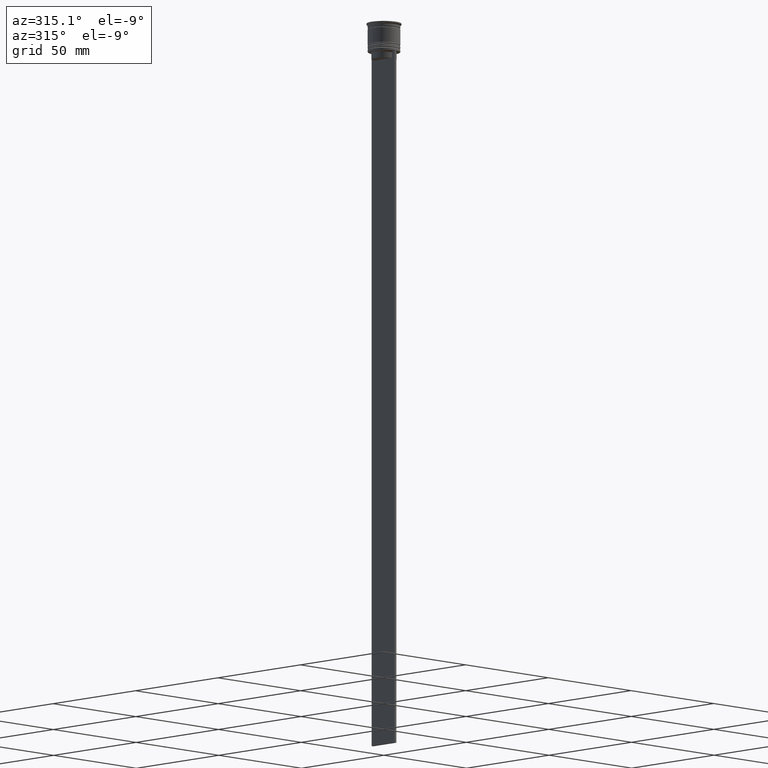
[diagram: clean part render]
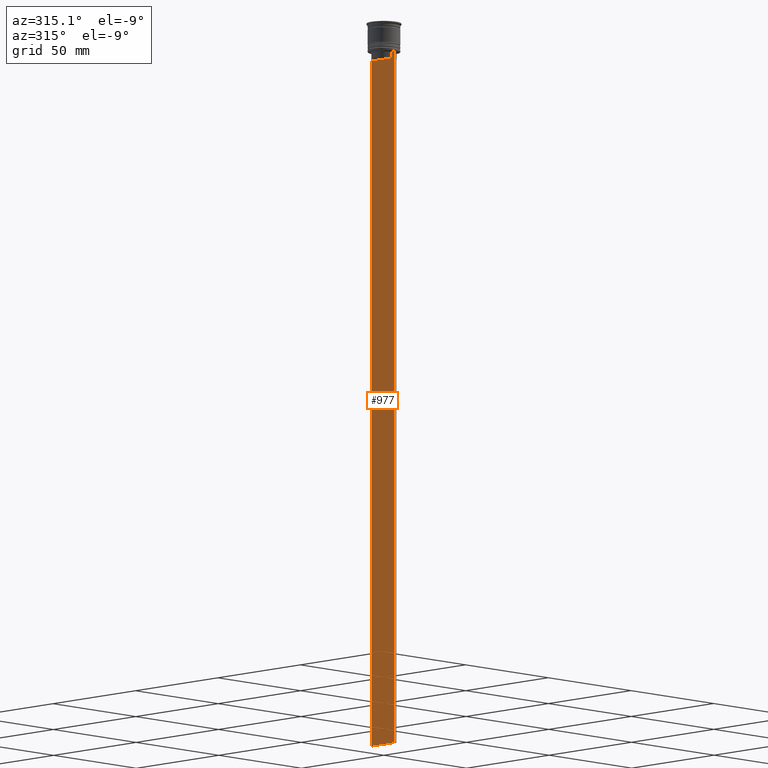
[diagram: same view with one face highlighted and labeled with its STEP entity id]
A machine part, auxiliary view. The second image highlights one B-rep face of the part: STEP entity #977.
In plain terms, the highlighted planar face has unit normal (-1, 0, 0).
Its self-contained STEP definition (entity closure, byte-faithful):
#1 = EDGE_CURVE ( 'NONE', #782, #1154, #1803, .T. ) ;
#40 = LINE ( 'NONE', #1597, #1086 ) ;
#108 = CARTESIAN_POINT ( 'NONE',  ( -0.5000000000000000000, -5.878775382679629402, -12.50000000000000000 ) ) ;
#166 = LINE ( 'NONE', #1702, #167 ) ;
#167 = VECTOR ( 'NONE', #1726, 1000.000000000000000 ) ;
#205 = DIRECTION ( 'NONE',  ( -1.000000000000000000, 0.000000000000000000, 0.000000000000000000 ) ) ;
#206 = VECTOR ( 'NONE', #1778, 1000.000000000000000 ) ;
#222 = VERTEX_POINT ( 'NONE', #395 ) ;
#242 = B_SPLINE_CURVE_WITH_KNOTS ( 'NONE', 3,
 ( #508, #2437, #903, #108 ),
 .UNSPECIFIED., .F., .F.,
 ( 4, 4 ),
 ( 0.02539176325380714666, 0.02610162431828674801 ),
 .UNSPECIFIED. ) ;
#318 = VERTEX_POINT ( 'NONE', #1357 ) ;
#338 = EDGE_CURVE ( 'NONE', #2162, #2461, #1737, .T. ) ;
#345 = EDGE_LOOP ( 'NONE', ( #1749, #458, #2341, #844, #2390, #1905, #876, #2465, #2406, #1167, #2185, #1034 ) ) ;
#395 = CARTESIAN_POINT ( 'NONE',  ( -0.5000000000000000000, 7.000000000000002665, -312.5000000000000000 ) ) ;
#418 = CARTESIAN_POINT ( 'NONE',  ( -0.5000000000000000000, 5.376802023508029826, -13.00000000000000178 ) ) ;
#458 = ORIENTED_EDGE ( 'NONE', *, *, #1, .F. ) ;
#482 = EDGE_CURVE ( 'NONE', #1154, #2350, #2206, .T. ) ;
#508 = CARTESIAN_POINT ( 'NONE',  ( -0.5000000000000000000, -5.376802023508029826, -13.00000000000000178 ) ) ;
#609 = CARTESIAN_POINT ( 'NONE',  ( -0.5000000000000000000, -5.376802023508029826, -13.00000000000000178 ) ) ;
#682 = VERTEX_POINT ( 'NONE', #1380 ) ;
#703 = CARTESIAN_POINT ( 'NONE',  ( -0.5000000000000000000, 5.711478846560141598, -12.66669470477064685 ) ) ;
#777 = EDGE_CURVE ( 'NONE', #682, #318, #879, .T. ) ;
#782 = VERTEX_POINT ( 'NONE', #1232 ) ;
#808 = DIRECTION ( 'NONE',  ( 0.000000000000000000, -1.000000000000000000, 0.000000000000000000 ) ) ;
#823 = CARTESIAN_POINT ( 'NONE',  ( -0.5000000000000000000, -6.999999999999997335, -12.50000000000000000 ) ) ;
#844 = ORIENTED_EDGE ( 'NONE', *, *, #2040, .T. ) ;
#867 = LINE ( 'NONE', #2030, #1613 ) ;
#876 = ORIENTED_EDGE ( 'NONE', *, *, #1084, .F. ) ;
#879 = LINE ( 'NONE', #1421, #1757 ) ;
#885 = CARTESIAN_POINT ( 'NONE',  ( -0.5000000000000000000, -6.999999999999997335, -12.50000000000000000 ) ) ;
#903 = CARTESIAN_POINT ( 'NONE',  ( -0.5000000000000000000, -5.711478856069293286, -12.66669469529570335 ) ) ;
#968 = CARTESIAN_POINT ( 'NONE',  ( -0.5000000000000000000, -6.881860213634102053, -12.50000000000000000 ) ) ;
#977 = ADVANCED_FACE ( 'NONE', ( #1532 ), #2080, .T. ) ;
#1008 = VECTOR ( 'NONE', #1065, 1000.000000000000000 ) ;
#1019 = VERTEX_POINT ( 'NONE', #1553 ) ;
#1020 = DIRECTION ( 'NONE',  ( -0.000000000000000000, -0.000000000000000000, 1.000000000000000000 ) ) ;
#1022 = EDGE_CURVE ( 'NONE', #1808, #782, #1568, .T. ) ;
#1024 = CARTESIAN_POINT ( 'NONE',  ( -0.5000000000000000000, -6.999999999999997335, -12.50000000000000000 ) ) ;
#1034 = ORIENTED_EDGE ( 'NONE', *, *, #1345, .F. ) ;
#1064 = DIRECTION ( 'NONE',  ( 0.000000000000000000, -1.000000000000000000, 0.000000000000000000 ) ) ;
#1065 = DIRECTION ( 'NONE',  ( 0.000000000000000000, 1.000000000000000000, 0.000000000000000000 ) ) ;
#1073 = CARTESIAN_POINT ( 'NONE',  ( -0.5000000000000000000, 5.878775382679629402, -12.50000000000000000 ) ) ;
#1084 = EDGE_CURVE ( 'NONE', #1322, #682, #2322, .T. ) ;
#1086 = VECTOR ( 'NONE', #808, 1000.000000000000000 ) ;
#1097 = LINE ( 'NONE', #1426, #1008 ) ;
#1105 = LINE ( 'NONE', #2452, #2328 ) ;
#1109 = EDGE_CURVE ( 'NONE', #1019, #2162, #40, .T. ) ;
#1125 = CARTESIAN_POINT ( 'NONE',  ( -0.5000000000000000000, 7.000000000000002665, -12.50000000000000000 ) ) ;
#1140 = DIRECTION ( 'NONE',  ( 0.000000000000000000, -1.000000000000000000, 0.000000000000000000 ) ) ;
#1154 = VERTEX_POINT ( 'NONE', #1073 ) ;
#1156 = EDGE_CURVE ( 'NONE', #2461, #2133, #242, .T. ) ;
#1167 = ORIENTED_EDGE ( 'NONE', *, *, #338, .F. ) ;
#1199 = VECTOR ( 'NONE', #1064, 1000.000000000000000 ) ;
#1220 = EDGE_CURVE ( 'NONE', #318, #222, #1097, .T. ) ;
#1232 = CARTESIAN_POINT ( 'NONE',  ( -0.5000000000000000000, 6.881860213634102053, -12.50000000000000000 ) ) ;
#1243 = VECTOR ( 'NONE', #2375, 1000.000000000000000 ) ;
#1318 = EDGE_CURVE ( 'NONE', #2133, #1322, #1105, .T. ) ;
#1322 = VERTEX_POINT ( 'NONE', #968 ) ;
#1345 = EDGE_CURVE ( 'NONE', #2350, #1019, #166, .T. ) ;
#1357 = CARTESIAN_POINT ( 'NONE',  ( -0.5000000000000000000, -6.999999999999997335, -312.5000000000000000 ) ) ;
#1380 = CARTESIAN_POINT ( 'NONE',  ( -0.5000000000000000000, -6.999999999999997335, -12.50000000000000000 ) ) ;
#1421 = CARTESIAN_POINT ( 'NONE',  ( -0.5000000000000000000, -6.999999999999997335, 1.535668847618198329 ) ) ;
#1426 = CARTESIAN_POINT ( 'NONE',  ( -0.5000000000000000000, -6.999999999999997335, -312.5000000000000000 ) ) ;
#1458 = DIRECTION ( 'NONE',  ( 0.000000000000000000, 0.000000000000000000, 1.000000000000000000 ) ) ;
#1462 = CARTESIAN_POINT ( 'NONE',  ( -0.5000000000000000000, 5.376802023508029826, -13.00000000000000178 ) ) ;
#1532 = FACE_OUTER_BOUND ( 'NONE', #345, .T. ) ;
#1553 = CARTESIAN_POINT ( 'NONE',  ( -0.5000000000000000000, 5.376802023508029826, -15.50000000000000000 ) ) ;
#1568 = LINE ( 'NONE', #823, #1243 ) ;
#1597 = CARTESIAN_POINT ( 'NONE',  ( -0.5000000000000000000, 5.400000000000003908, -15.50000000000000000 ) ) ;
#1613 = VECTOR ( 'NONE', #1643, 1000.000000000000000 ) ;
#1643 = DIRECTION ( 'NONE',  ( 0.000000000000000000, 0.000000000000000000, -1.000000000000000000 ) ) ;
#1702 = CARTESIAN_POINT ( 'NONE',  ( -0.5000000000000000000, 5.376802023508029826, 0.000000000000000000 ) ) ;
#1706 = CARTESIAN_POINT ( 'NONE',  ( -0.5000000000000000000, -6.999999999999997335, 1.535668847618198329 ) ) ;
#1726 = DIRECTION ( 'NONE',  ( 0.000000000000000000, 0.000000000000000000, -1.000000000000000000 ) ) ;
#1737 = LINE ( 'NONE', #1758, #1796 ) ;
#1749 = ORIENTED_EDGE ( 'NONE', *, *, #482, .F. ) ;
#1757 = VECTOR ( 'NONE', #1795, 1000.000000000000000 ) ;
#1758 = CARTESIAN_POINT ( 'NONE',  ( -0.5000000000000000000, -5.376802023508029826, 0.000000000000000000 ) ) ;
#1778 = DIRECTION ( 'NONE',  ( 0.000000000000000000, -1.000000000000000000, 0.000000000000000000 ) ) ;
#1795 = DIRECTION ( 'NONE',  ( 0.000000000000000000, 0.000000000000000000, -1.000000000000000000 ) ) ;
#1796 = VECTOR ( 'NONE', #1020, 1000.000000000000000 ) ;
#1803 = LINE ( 'NONE', #885, #1199 ) ;
#1808 = VERTEX_POINT ( 'NONE', #1125 ) ;
#1905 = ORIENTED_EDGE ( 'NONE', *, *, #777, .F. ) ;
#2022 = CARTESIAN_POINT ( 'NONE',  ( -0.5000000000000000000, 5.544156989057553275, -12.83336397825725861 ) ) ;
#2030 = CARTESIAN_POINT ( 'NONE',  ( -0.5000000000000000000, 7.000000000000002665, 1.535668847618198329 ) ) ;
#2040 = EDGE_CURVE ( 'NONE', #1808, #222, #867, .T. ) ;
#2080 = PLANE ( 'NONE',  #2491 ) ;
#2133 = VERTEX_POINT ( 'NONE', #2381 ) ;
#2162 = VERTEX_POINT ( 'NONE', #2190 ) ;
#2185 = ORIENTED_EDGE ( 'NONE', *, *, #1109, .F. ) ;
#2190 = CARTESIAN_POINT ( 'NONE',  ( -0.5000000000000000000, -5.376802023508029826, -15.50000000000000000 ) ) ;
#2206 = B_SPLINE_CURVE_WITH_KNOTS ( 'NONE', 3,
 ( #2412, #703, #2022, #1462 ),
 .UNSPECIFIED., .F., .F.,
 ( 4, 4 ),
 ( 0.01003009312103698807, 0.01073859663834952557 ),
 .UNSPECIFIED. ) ;
#2322 = LINE ( 'NONE', #1024, #206 ) ;
#2328 = VECTOR ( 'NONE', #1140, 1000.000000000000000 ) ;
#2341 = ORIENTED_EDGE ( 'NONE', *, *, #1022, .F. ) ;
#2350 = VERTEX_POINT ( 'NONE', #418 ) ;
#2375 = DIRECTION ( 'NONE',  ( 0.000000000000000000, -1.000000000000000000, 0.000000000000000000 ) ) ;
#2381 = CARTESIAN_POINT ( 'NONE',  ( -0.5000000000000000000, -5.878775382679629402, -12.50000000000000000 ) ) ;
#2390 = ORIENTED_EDGE ( 'NONE', *, *, #1220, .F. ) ;
#2406 = ORIENTED_EDGE ( 'NONE', *, *, #1156, .F. ) ;
#2412 = CARTESIAN_POINT ( 'NONE',  ( -0.5000000000000000000, 5.878775382679629402, -12.50000000000000000 ) ) ;
#2437 = CARTESIAN_POINT ( 'NONE',  ( -0.5000000000000000000, -5.544156999454441959, -12.83336396790503642 ) ) ;
#2452 = CARTESIAN_POINT ( 'NONE',  ( -0.5000000000000000000, -6.999999999999997335, -12.50000000000000000 ) ) ;
#2461 = VERTEX_POINT ( 'NONE', #609 ) ;
#2465 = ORIENTED_EDGE ( 'NONE', *, *, #1318, .F. ) ;
#2491 = AXIS2_PLACEMENT_3D ( 'NONE', #1706, #205, #1458 ) ;